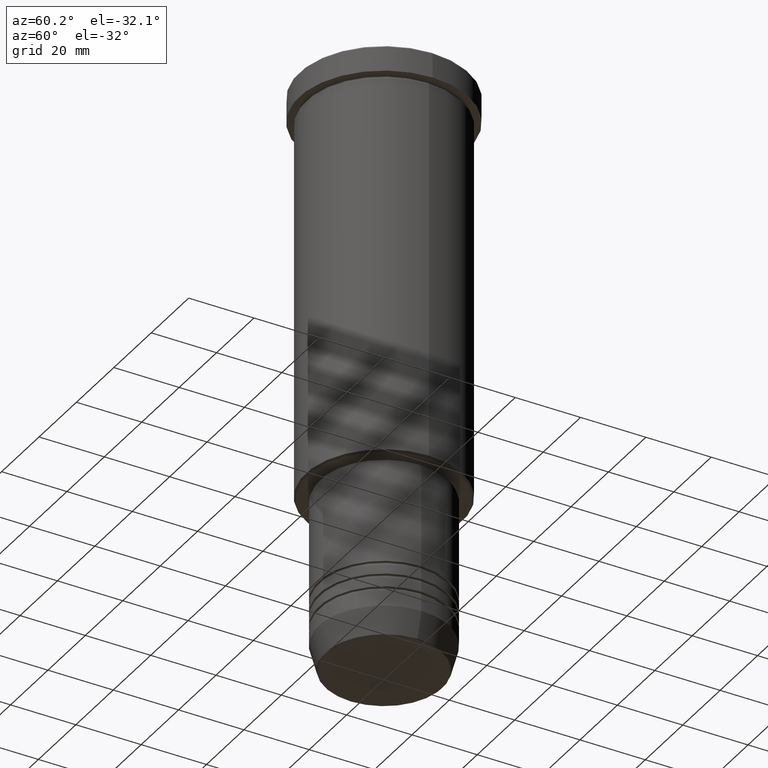
[diagram: clean part render]
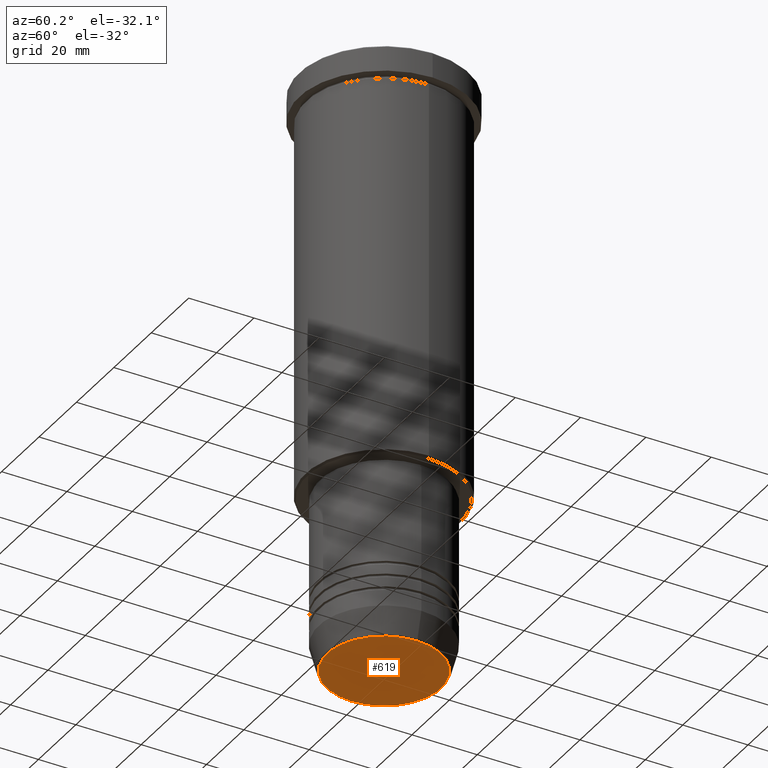
[diagram: same view with one face highlighted and labeled with its STEP entity id]
A machine part, auxiliary view. The second image highlights one B-rep face of the part: STEP entity #619.
In plain terms, the highlighted planar face has unit normal (0, -0, 1).
Its self-contained STEP definition (entity closure, byte-faithful):
#11 = CARTESIAN_POINT ( 'NONE',  ( 0.000000000000000000, 0.000000000000000000, -180.0000000000000000 ) ) ;
#16 = DIRECTION ( 'NONE',  ( 0.000000000000000000, 0.000000000000000000, -1.000000000000000000 ) ) ;
#28 = VERTEX_POINT ( 'NONE', #506 ) ;
#58 = CIRCLE ( 'NONE', #108, 17.47274296656154036 ) ;
#106 = AXIS2_PLACEMENT_3D ( 'NONE', #339, #1167, #734 ) ;
#108 = AXIS2_PLACEMENT_3D ( 'NONE', #11, #16, #556 ) ;
#161 = PLANE ( 'NONE',  #106 ) ;
#169 = ORIENTED_EDGE ( 'NONE', *, *, #557, .T. ) ;
#311 = CARTESIAN_POINT ( 'NONE',  ( 0.000000000000000000, 0.000000000000000000, -180.0000000000000000 ) ) ;
#336 = CIRCLE ( 'NONE', #526, 17.47274296656154036 ) ;
#339 = CARTESIAN_POINT ( 'NONE',  ( 0.000000000000000000, 0.000000000000000000, -180.0000000000000000 ) ) ;
#506 = CARTESIAN_POINT ( 'NONE',  ( -17.47274296656154036, 2.169366823916868503E-15, -180.0000000000000000 ) ) ;
#523 = FACE_OUTER_BOUND ( 'NONE', #719, .T. ) ;
#526 = AXIS2_PLACEMENT_3D ( 'NONE', #311, #1059, #1160 ) ;
#556 = DIRECTION ( 'NONE',  ( 1.000000000000000000, 0.000000000000000000, 0.000000000000000000 ) ) ;
#557 = EDGE_CURVE ( 'NONE', #28, #755, #336, .T. ) ;
#619 = ADVANCED_FACE ( 'NONE', ( #523 ), #161, .F. ) ;
#719 = EDGE_LOOP ( 'NONE', ( #835, #169 ) ) ;
#734 = DIRECTION ( 'NONE',  ( 1.000000000000000000, 0.000000000000000000, 0.000000000000000000 ) ) ;
#755 = VERTEX_POINT ( 'NONE', #1119 ) ;
#835 = ORIENTED_EDGE ( 'NONE', *, *, #867, .T. ) ;
#867 = EDGE_CURVE ( 'NONE', #755, #28, #58, .T. ) ;
#1059 = DIRECTION ( 'NONE',  ( 0.000000000000000000, 0.000000000000000000, -1.000000000000000000 ) ) ;
#1119 = CARTESIAN_POINT ( 'NONE',  ( 17.47274296656154036, 0.000000000000000000, -180.0000000000000000 ) ) ;
#1160 = DIRECTION ( 'NONE',  ( 1.000000000000000000, 0.000000000000000000, 0.000000000000000000 ) ) ;
#1167 = DIRECTION ( 'NONE',  ( 0.000000000000000000, -0.000000000000000000, 1.000000000000000000 ) ) ;